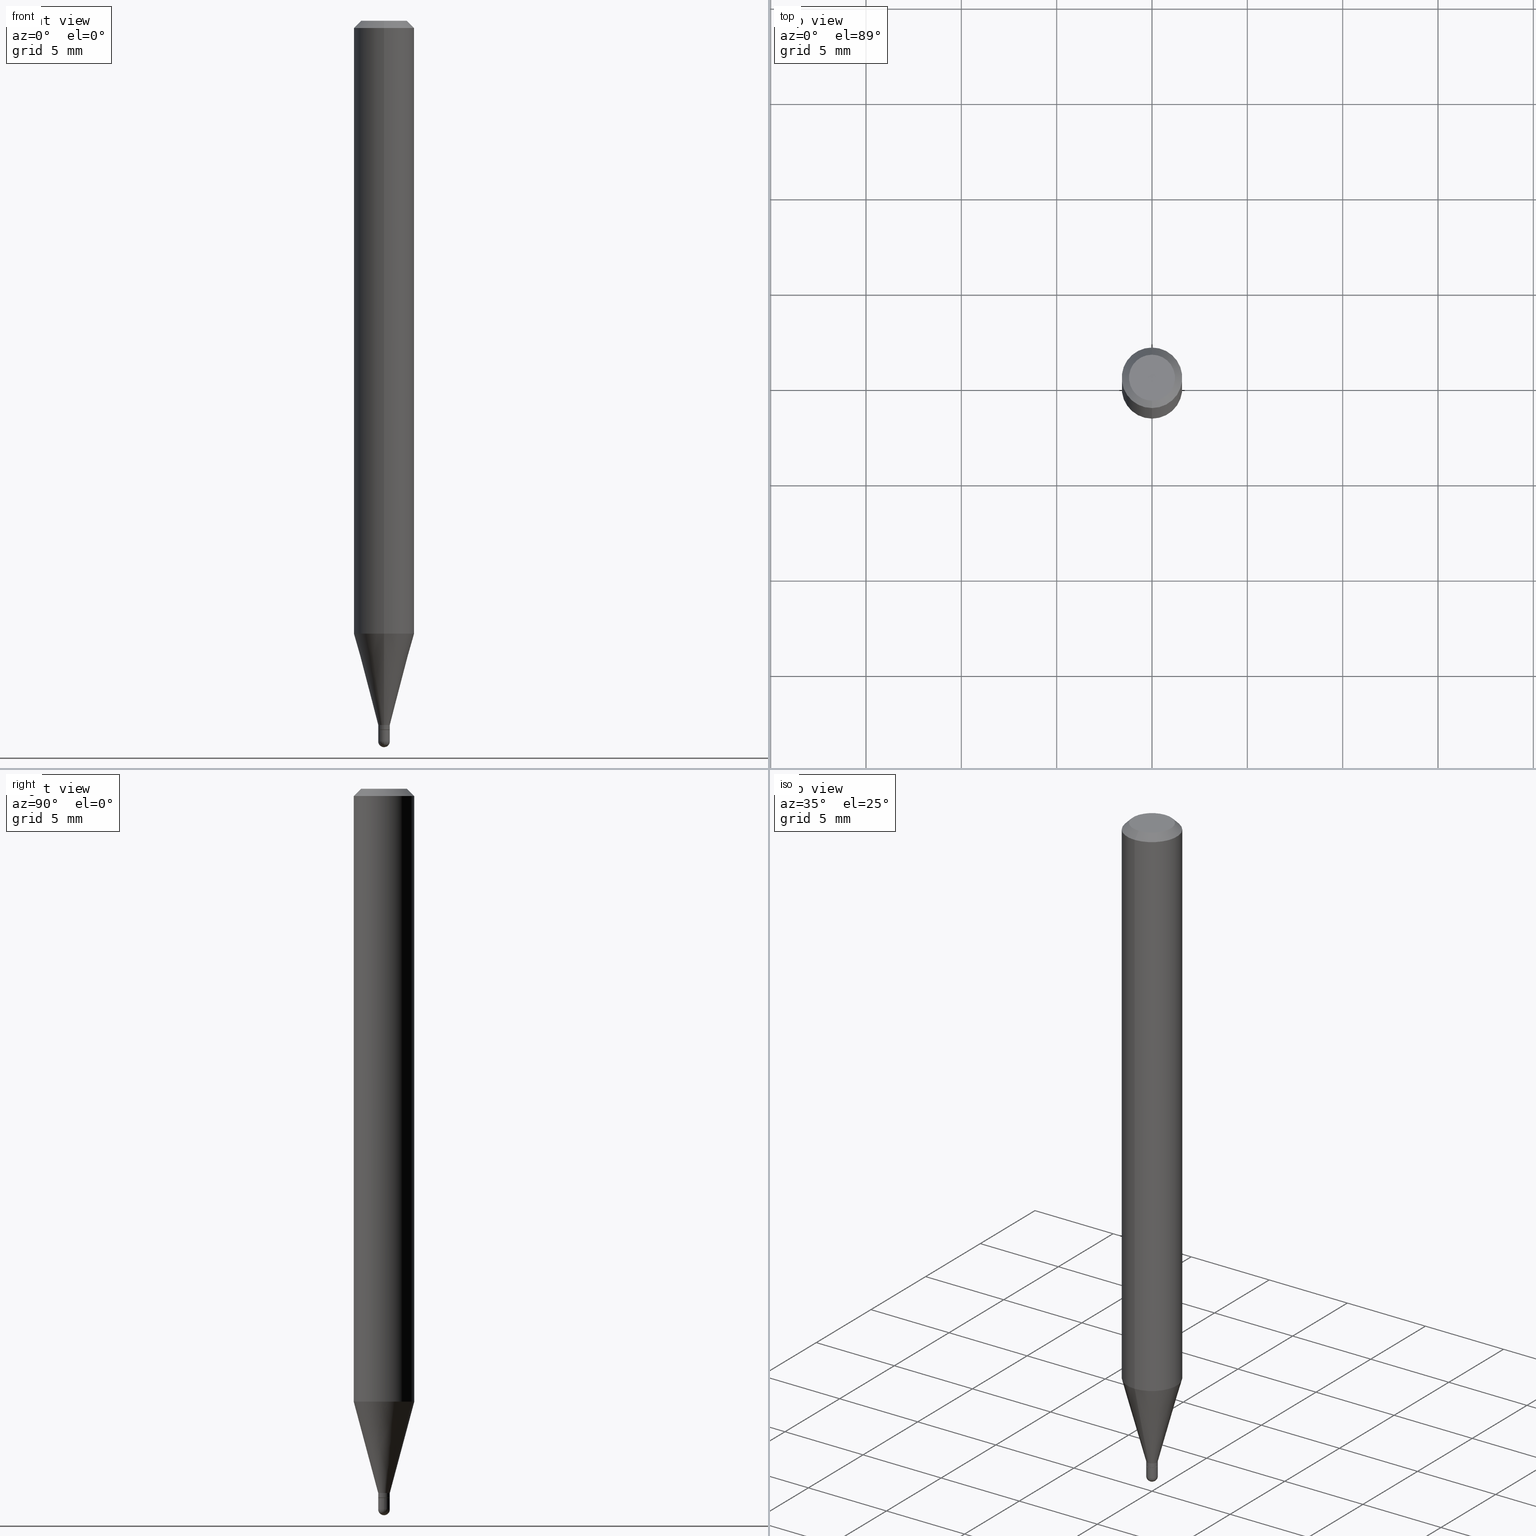
[diagram: canonical four-view strip — front | top / right | iso, engineering-drawing reading convention]
A machine part, canonical four-view strip (front | top / right | iso — engineering-drawing reading convention). The complete STEP part file that produces these views, byte-faithful:
ISO-10303-21;
HEADER;
FILE_DESCRIPTION (( 'STEP AP203' ),
    '1' );
FILE_NAME ('00759.STEP',
    '2024-03-07T18:13:53',
    ( '' ),
    ( '' ),
    'SwSTEP 2.0',
    'SolidWorks 2023',
    '' );
FILE_SCHEMA (( 'CONFIG_CONTROL_DESIGN' ));
ENDSEC;

DATA;
#1 = DIRECTION ( 'NONE',  ( -6.982962677686265922E-15, -1.000000000000000000, 3.491494319443495188E-15 ) ) ;
#2 = EDGE_CURVE ( 'NONE', #6, #416, #243, .T. ) ;
#3 =( LENGTH_UNIT ( ) NAMED_UNIT ( * ) SI_UNIT ( $, .METRE. ) );
#4 = DIRECTION ( 'NONE',  ( -1.000000000000000000, 6.982962677686265922E-15, -4.876176775795935793E-29 ) ) ;
#5 = DIRECTION ( 'NONE',  ( -2.445459741880358586E-29, 3.491494319443495582E-15, 1.000000000000000000 ) ) ;
#6 = VERTEX_POINT ( 'NONE', #434 ) ;
#7 = AXIS2_PLACEMENT_3D ( 'NONE', #348, #468, #471 ) ;
#8 = DIRECTION ( 'NONE',  ( -6.982962677686265922E-15, -1.000000000000000000, 3.491494319443495582E-15 ) ) ;
#9 = COORDINATED_UNIVERSAL_TIME_OFFSET ( 5, 0, .BEHIND. ) ;
#10 = EDGE_CURVE ( 'NONE', #340, #172, #161, .T. ) ;
#11 = SHAPE_DEFINITION_REPRESENTATION ( #228, #477 ) ;
#12 = CC_DESIGN_PERSON_AND_ORGANIZATION_ASSIGNMENT ( #400, #252, ( #386 ) ) ;
#13 = LINE ( 'NONE', #56, #472 ) ;
#14 = DATE_AND_TIME ( #201, #265 ) ;
#15 = CARTESIAN_POINT ( 'NONE',  ( 0.01200000000000000025, -5.195324232198600513E-15, -1.463999999999999968 ) ) ;
#16 = VECTOR ( 'NONE', #287, 39.37007874015748143 ) ;
#17 = CC_DESIGN_APPROVAL ( #199, ( #386 ) ) ;
#18 = DATE_TIME_ROLE ( 'creation_date' ) ;
#19 = EDGE_LOOP ( 'NONE', ( #275, #500 ) ) ;
#20 = ADVANCED_FACE ( 'NONE', ( #135 ), #383, .T. ) ;
#21 = ORIENTED_EDGE ( 'NONE', *, *, #37, .F. ) ;
#22 = CARTESIAN_POINT ( 'NONE',  ( 0.000000000000000000, 0.000000000000000000, 0.000000000000000000 ) ) ;
#23 = EDGE_LOOP ( 'NONE', ( #436, #306, #250, #125 ) ) ;
#24 = DIRECTION ( 'NONE',  ( -2.445468806185136597E-29, 3.491481338843145583E-15, 1.000000000000000000 ) ) ;
#25 = FACE_OUTER_BOUND ( 'NONE', #380, .T. ) ;
#26 = CARTESIAN_POINT ( 'NONE',  ( -8.379555213219913775E-17, -0.01200000000000507432, -1.463500000000000023 ) ) ;
#27 = CIRCLE ( 'NONE', #334, 0.04749999999999999362 ) ;
#28 = VERTEX_POINT ( 'NONE', #46 ) ;
#29 = VECTOR ( 'NONE', #270, 39.37007874015748143 ) ;
#30 = EDGE_CURVE ( 'NONE', #416, #63, #320, .T. ) ;
#31 = DIRECTION ( 'NONE',  ( -6.982962677686265922E-15, -1.000000000000000000, 0.000000000000000000 ) ) ;
#32 = UNCERTAINTY_MEASURE_WITH_UNIT (LENGTH_MEASURE( 1.000000000000000082E-05 ), #346, 'distance_accuracy_value', 'NONE');
#33 = ORIENTED_EDGE ( 'NONE', *, *, #235, .T. ) ;
#34 = PERSON ( 'UNSPECIFIED', 'UNSPECIFIED', 'UNSPECIFIED', ('UNSPECIFIED'), ('UNSPECIFIED'), ('UNSPECIFIED') ) ;
#35 = AXIS2_PLACEMENT_3D ( 'NONE', #276, #482, #232 ) ;
#36 = AXIS2_PLACEMENT_3D ( 'NONE', #133, #93, #280 ) ;
#37 = EDGE_CURVE ( 'NONE', #6, #317, #131, .T. ) ;
#38 = ORIENTED_EDGE ( 'NONE', *, *, #2, .F. ) ;
#39 = VERTEX_POINT ( 'NONE', #399 ) ;
#40 = AXIS2_PLACEMENT_3D ( 'NONE', #267, #465, #126 ) ;
#41 = DIRECTION ( 'NONE',  ( 6.982962677686265922E-15, 1.000000000000000000, -3.491494319443495582E-15 ) ) ;
#42 = CARTESIAN_POINT ( 'NONE',  ( -0.01200000000000000025, -5.068161327841269963E-15, -1.463999999999999968 ) ) ;
#43 = DIRECTION ( 'NONE',  ( -6.982962677686266711E-15, -1.000000000000000000, 0.000000000000000000 ) ) ;
#44 = ORIENTED_EDGE ( 'NONE', *, *, #162, .F. ) ;
#45 = CARTESIAN_POINT ( 'NONE',  ( 0.000000000000000000, 0.000000000000000000, 0.000000000000000000 ) ) ;
#46 = CARTESIAN_POINT ( 'NONE',  ( 3.840629472727447874E-16, 0.04749999999999999362, -1.747056831868805136E-16 ) ) ;
#47 = DIRECTION ( 'NONE',  ( 1.000000000000000000, -6.982962677686250144E-15, 0.000000000000000000 ) ) ;
#48 = PLANE ( 'NONE',  #314 ) ;
#49 = PERSON_AND_ORGANIZATION_ROLE ( 'design_supplier' ) ;
#50 = VECTOR ( 'NONE', #91, 39.37007874015748143 ) ;
#51 = AXIS2_PLACEMENT_3D ( 'NONE', #114, #218, #372 ) ;
#52 = CC_DESIGN_APPROVAL ( #389, ( #325 ) ) ;
#53 = CARTESIAN_POINT ( 'NONE',  ( 0.000000000000000000, 0.000000000000000000, 0.000000000000000000 ) ) ;
#54 = DIRECTION ( 'NONE',  ( 1.839019923739599921E-15, 0.2588190451025249028, 0.9659258262890670910 ) ) ;
#55 = ORIENTED_EDGE ( 'NONE', *, *, #205, .F. ) ;
#56 = CARTESIAN_POINT ( 'NONE',  ( -4.364351673553916201E-16, -0.06250000000000000000, 2.182183949652184739E-16 ) ) ;
#57 = PERSON_AND_ORGANIZATION ( #34, #308 ) ;
#58 = ORIENTED_EDGE ( 'NONE', *, *, #205, .T. ) ;
#59 = CARTESIAN_POINT ( 'NONE',  ( 0.01200000000000000198, -5.237222008264718177E-15, -1.487999999999999989 ) ) ;
#60 = FACE_OUTER_BOUND ( 'NONE', #415, .T. ) ;
#61 = CARTESIAN_POINT ( 'NONE',  ( -4.364351673553606573E-16, -0.06250000000000442701, -1.265531434217771922 ) ) ;
#62 = CIRCLE ( 'NONE', #458, 0.01199999999999992219 ) ;
#63 = VERTEX_POINT ( 'NONE', #26 ) ;
#64 = APPROVAL_DATE_TIME ( #490, #164 ) ;
#65 = CARTESIAN_POINT ( 'NONE',  ( 3.637831384056468447E-29, -5.196793808357578073E-15, -1.487999999999999989 ) ) ;
#66 = PRODUCT_DEFINITION ( 'UNKNOWN', '', #386, #418 ) ;
#67 = CARTESIAN_POINT ( 'NONE',  ( 3.578930332241904630E-29, -5.109801936505556785E-15, -1.463500000000000023 ) ) ;
#68 = ORIENTED_EDGE ( 'NONE', *, *, #37, .T. ) ;
#69 = ADVANCED_FACE ( 'NONE', ( #60 ), #330, .F. ) ;
#70 = DIRECTION ( 'NONE',  ( 1.000000000000000000, -6.982962677686265922E-15, 4.883557194083112340E-29 ) ) ;
#71 = VECTOR ( 'NONE', #342, 39.37007874015748143 ) ;
#72 = LOCAL_TIME ( 13, 13, 53.00000000000000000, #144 ) ;
#73 = DIRECTION ( 'NONE',  ( -1.000000000000000000, 6.982962677686265922E-15, -4.883557194083112901E-29 ) ) ;
#74 = ORIENTED_EDGE ( 'NONE', *, *, #183, .F. ) ;
#75 = MANIFOLD_SOLID_BREP ( 'Body-Move/Copy2[1]', #494 ) ;
#76 = ORIENTED_EDGE ( 'NONE', *, *, #235, .F. ) ;
#77 = CARTESIAN_POINT ( 'NONE',  ( 3.580166332255040005E-29, -5.111528680066365187E-15, -1.463999999999999968 ) ) ;
#78 = CIRCLE ( 'NONE', #118, 0.06250000000000000000 ) ;
#79 = LOCAL_TIME ( 13, 13, 53.00000000000000000, #92 ) ;
#80 = DIRECTION ( 'NONE',  ( -2.445459741880358586E-29, 3.491494319443495582E-15, 1.000000000000000000 ) ) ;
#81 = ORIENTED_EDGE ( 'NONE', *, *, #507, .T. ) ;
#82 = CYLINDRICAL_SURFACE ( 'NONE', #350, 0.01200000000000000198 ) ;
#83 = CARTESIAN_POINT ( 'NONE',  ( 3.638857583603483825E-29, -5.195324232198600513E-15, -1.487999999999999989 ) ) ;
#84 = VECTOR ( 'NONE', #352, 39.37007874015748143 ) ;
#85 = VECTOR ( 'NONE', #378, 39.37007874015748143 ) ;
#86 = FACE_OUTER_BOUND ( 'NONE', #379, .T. ) ;
#87 = ORIENTED_EDGE ( 'NONE', *, *, #318, .F. ) ;
#88 = CYLINDRICAL_SURFACE ( 'NONE', #215, 0.06250000000000000000 ) ;
#89 = DIRECTION ( 'NONE',  ( -2.445459741880358586E-29, 3.491494319443495582E-15, 1.000000000000000000 ) ) ;
#90 = ORIENTED_EDGE ( 'NONE', *, *, #277, .T. ) ;
#91 = DIRECTION ( 'NONE',  ( 5.024295867788190974E-15, 0.7071067811865681119, 0.7071067811865270336 ) ) ;
#92 = COORDINATED_UNIVERSAL_TIME_OFFSET ( 5, 0, .BEHIND. ) ;
#93 = DIRECTION ( 'NONE',  ( -2.445459741880358586E-29, 3.491494319443495582E-15, 1.000000000000000000 ) ) ;
#94 = ORIENTED_EDGE ( 'NONE', *, *, #318, .T. ) ;
#95 = FACE_OUTER_BOUND ( 'NONE', #151, .T. ) ;
#96 = ADVANCED_FACE ( 'NONE', ( #157 ), #341, .T. ) ;
#97 = DATE_AND_TIME ( #486, #79 ) ;
#98 = AXIS2_PLACEMENT_3D ( 'NONE', #402, #5, #237 ) ;
#99 = ORIENTED_EDGE ( 'NONE', *, *, #311, .T. ) ;
#100 = FACE_OUTER_BOUND ( 'NONE', #120, .T. ) ;
#101 = DIRECTION ( 'NONE',  ( -2.445459741880358586E-29, 3.491494319443495582E-15, 1.000000000000000000 ) ) ;
#102 = ADVANCED_FACE ( 'NONE', ( #95 ), #440, .T. ) ;
#103 = APPROVAL_STATUS ( 'not_yet_approved' ) ;
#104 = DIRECTION ( 'NONE',  ( -2.445468806185136597E-29, 3.491481338843145583E-15, 1.000000000000000000 ) ) ;
#105 = DATE_TIME_ROLE ( 'classification_date' ) ;
#106 = EDGE_CURVE ( 'NONE', #338, #298, #13, .T. ) ;
#107 = ORIENTED_EDGE ( 'NONE', *, *, #227, .T. ) ;
#108 = LINE ( 'NONE', #414, #123 ) ;
#109 = ORIENTED_EDGE ( 'NONE', *, *, #134, .T. ) ;
#110 = COORDINATED_UNIVERSAL_TIME_OFFSET ( 5, 0, .BEHIND. ) ;
#111 = DIRECTION ( 'NONE',  ( -4.851104656540964275E-15, -0.7071067811865500152, -0.7071067811865450192 ) ) ;
#112 = AXIS2_PLACEMENT_3D ( 'NONE', #83, #427, #266 ) ;
#113 = EDGE_LOOP ( 'NONE', ( #127, #33, #369, #442 ) ) ;
#114 = CARTESIAN_POINT ( 'NONE',  ( 3.637831384056468447E-29, -5.196793808357578073E-15, -1.487999999999999989 ) ) ;
#115 = ADVANCED_FACE ( 'NONE', ( #163 ), #258, .T. ) ;
#116 = VERTEX_POINT ( 'NONE', #437 ) ;
#117 = CIRCLE ( 'NONE', #428, 0.01200000000000000198 ) ;
#118 = AXIS2_PLACEMENT_3D ( 'NONE', #295, #485, #217 ) ;
#119 =( GEOMETRIC_REPRESENTATION_CONTEXT ( 3 ) GLOBAL_UNCERTAINTY_ASSIGNED_CONTEXT ( ( #32 ) ) GLOBAL_UNIT_ASSIGNED_CONTEXT ( ( #346, #424, #168 ) ) REPRESENTATION_CONTEXT ( 'NONE', 'WORKASPACE' ) );
#120 = EDGE_LOOP ( 'NONE', ( #21, #150, #247, #479 ) ) ;
#121 = ORIENTED_EDGE ( 'NONE', *, *, #406, .T. ) ;
#122 = ORIENTED_EDGE ( 'NONE', *, *, #303, .T. ) ;
#123 = VECTOR ( 'NONE', #111, 39.37007874015748143 ) ;
#124 = DIRECTION ( 'NONE',  ( -6.982962677686265133E-15, -1.000000000000000000, 0.000000000000000000 ) ) ;
#125 = ORIENTED_EDGE ( 'NONE', *, *, #498, .F. ) ;
#126 = DIRECTION ( 'NONE',  ( 6.982962677686265922E-15, 1.000000000000000000, -3.483106191921935554E-15 ) ) ;
#127 = ORIENTED_EDGE ( 'NONE', *, *, #406, .F. ) ;
#128 = FACE_OUTER_BOUND ( 'NONE', #113, .T. ) ;
#129 = AXIS2_PLACEMENT_3D ( 'NONE', #67, #493, #171 ) ;
#130 = EDGE_LOOP ( 'NONE', ( #462, #68, #286, #373 ) ) ;
#131 = LINE ( 'NONE', #273, #50 ) ;
#132 = LINE ( 'NONE', #158, #511 ) ;
#133 = CARTESIAN_POINT ( 'NONE',  ( 3.094806174463673262E-29, -4.418595813648531797E-15, -1.265531434217772144 ) ) ;
#134 = EDGE_CURVE ( 'NONE', #219, #39, #117, .T. ) ;
#135 = FACE_OUTER_BOUND ( 'NONE', #368, .T. ) ;
#136 = ADVANCED_FACE ( 'NONE', ( #433 ), #480, .T. ) ;
#137 = SECURITY_CLASSIFICATION_LEVEL ( 'unclassified' ) ;
#138 = AXIS2_PLACEMENT_3D ( 'NONE', #140, #104, #248 ) ;
#139 = AXIS2_PLACEMENT_3D ( 'NONE', #351, #238, #512 ) ;
#140 = CARTESIAN_POINT ( 'NONE',  ( 3.638857583603483825E-29, -5.195324232198600513E-15, -1.487999999999999989 ) ) ;
#141 = PERSON_AND_ORGANIZATION ( #34, #308 ) ;
#142 = CARTESIAN_POINT ( 'NONE',  ( 3.637831384056468447E-29, -5.196793808357578073E-15, -1.487999999999999989 ) ) ;
#143 = CALENDAR_DATE ( 2024, 7, 3 ) ;
#144 = COORDINATED_UNIVERSAL_TIME_OFFSET ( 5, 0, .BEHIND. ) ;
#145 = EDGE_LOOP ( 'NONE', ( #409, #122, #450, #87 ) ) ;
#146 = DIRECTION ( 'NONE',  ( -2.445459741880358586E-29, 3.491494319443495582E-15, 1.000000000000000000 ) ) ;
#147 = AXIS2_PLACEMENT_3D ( 'NONE', #508, #226, #194 ) ;
#148 = DIRECTION ( 'NONE',  ( -6.982962677686265133E-15, -1.000000000000000000, 0.000000000000000000 ) ) ;
#149 = ADVANCED_FACE ( 'NONE', ( #397 ), #48, .F. ) ;
#150 = ORIENTED_EDGE ( 'NONE', *, *, #2, .T. ) ;
#151 = EDGE_LOOP ( 'NONE', ( #487, #261, #289, #76 ) ) ;
#152 = CARTESIAN_POINT ( 'NONE',  ( -8.379555213219910077E-17, -0.01200000000000499972, -1.454000000000000181 ) ) ;
#153 = AXIS2_PLACEMENT_3D ( 'NONE', #364, #489, #448 ) ;
#154 = VECTOR ( 'NONE', #390, 39.37007874015748143 ) ;
#155 = PLANE ( 'NONE',  #463 ) ;
#156 = FACE_OUTER_BOUND ( 'NONE', #497, .T. ) ;
#157 = FACE_OUTER_BOUND ( 'NONE', #187, .T. ) ;
#158 = CARTESIAN_POINT ( 'NONE',  ( -8.379555213223467347E-17, -0.01199999999999992566, 4.189793183332168341E-17 ) ) ;
#159 = CARTESIAN_POINT ( 'NONE',  ( 4.440892098500932831E-16, 0.06249999999999555911, -1.265531434217772366 ) ) ;
#160 = EDGE_LOOP ( 'NONE', ( #182, #99, #502, #206 ) ) ;
#161 = LINE ( 'NONE', #208, #374 ) ;
#162 = EDGE_CURVE ( 'NONE', #332, #337, #245, .T. ) ;
#163 = FACE_OUTER_BOUND ( 'NONE', #23, .T. ) ;
#164 = APPROVAL ( #103, 'UNSPECIFIED' ) ;
#165 = DATE_AND_TIME ( #143, #431 ) ;
#166 = DIRECTION ( 'NONE',  ( -6.982962677686265922E-15, -1.000000000000000000, 3.491494319443495188E-15 ) ) ;
#167 = DIRECTION ( 'NONE',  ( -2.445459741880358586E-29, 3.491494319443495582E-15, 1.000000000000000000 ) ) ;
#168 =( NAMED_UNIT ( * ) SI_UNIT ( $, .STERADIAN. ) SOLID_ANGLE_UNIT ( ) );
#169 = CIRCLE ( 'NONE', #253, 0.01200000000000000025 ) ;
#170 = SPHERICAL_SURFACE ( 'NONE', #178, 0.01200000000000001933 ) ;
#171 = DIRECTION ( 'NONE',  ( -6.982962677686265922E-15, -1.000000000000000000, 0.000000000000000000 ) ) ;
#172 = VERTEX_POINT ( 'NONE', #159 ) ;
#173 = APPROVAL_STATUS ( 'not_yet_approved' ) ;
#174 = VERTEX_POINT ( 'NONE', #354 ) ;
#175 = CARTESIAN_POINT ( 'NONE',  ( 2.166604704407663648E-46, -3.093360274294388668E-32, -8.859703013314469095E-18 ) ) ;
#176 = ADVANCED_FACE ( 'NONE', ( #128 ), #88, .T. ) ;
#177 = DIRECTION ( 'NONE',  ( 1.000000000000000000, -6.982962677686266711E-15, 4.876176775795935232E-29 ) ) ;
#178 = AXIS2_PLACEMENT_3D ( 'NONE', #142, #290, #410 ) ;
#179 = DIRECTION ( 'NONE',  ( -6.982962677686266711E-15, -1.000000000000000000, 3.491494319443496371E-15 ) ) ;
#180 = DIMENSIONAL_EXPONENTS ( 1.000000000000000000, 0.000000000000000000, 0.000000000000000000, 0.000000000000000000, 0.000000000000000000, 0.000000000000000000, 0.000000000000000000 ) ;
#181 = ORIENTED_EDGE ( 'NONE', *, *, #507, .F. ) ;
#182 = ORIENTED_EDGE ( 'NONE', *, *, #269, .F. ) ;
#183 = EDGE_CURVE ( 'NONE', #467, #337, #260, .T. ) ;
#184 = AXIS2_PLACEMENT_3D ( 'NONE', #53, #393, #1 ) ;
#185 = CC_DESIGN_SECURITY_CLASSIFICATION ( #325, ( #386 ) ) ;
#186 = EDGE_CURVE ( 'NONE', #63, #317, #376, .T. ) ;
#187 = EDGE_LOOP ( 'NONE', ( #299, #509, #478, #473 ) ) ;
#188 = CC_DESIGN_PERSON_AND_ORGANIZATION_ASSIGNMENT ( #213, #328, ( #66 ) ) ;
#189 = PRODUCT ( '00759', '00759', '', ( #357 ) ) ;
#190 = CONICAL_SURFACE ( 'NONE', #324, 0.01149999999999999981, 0.7853981633974739252 ) ;
#191 = APPROVAL_PERSON_ORGANIZATION ( #141, #199, #435 ) ;
#192 = LINE ( 'NONE', #272, #154 ) ;
#193 = DIRECTION ( 'NONE',  ( 1.000000000000000000, -6.982962677686250144E-15, 0.000000000000000000 ) ) ;
#194 = DIRECTION ( 'NONE',  ( -6.982962677686266711E-15, -1.000000000000000000, 3.491494319443496371E-15 ) ) ;
#195 = DIRECTION ( 'NONE',  ( -2.445459741880358586E-29, 3.491494319443495582E-15, 1.000000000000000000 ) ) ;
#196 = EDGE_CURVE ( 'NONE', #469, #39, #355, .T. ) ;
#197 = CARTESIAN_POINT ( 'NONE',  ( -8.030407079335625387E-17, -0.01150000000000511204, -1.463999999999999968 ) ) ;
#198 = CARTESIAN_POINT ( 'NONE',  ( 0.000000000000000000, 0.000000000000000000, 0.000000000000000000 ) ) ;
#199 = APPROVAL ( #173, 'UNSPECIFIED' ) ;
#200 = CIRCLE ( 'NONE', #293, 0.06250000000000000000 ) ;
#201 = CALENDAR_DATE ( 2024, 7, 3 ) ;
#202 = APPROVAL_PERSON_ORGANIZATION ( #331, #164, #360 ) ;
#203 = DIRECTION ( 'NONE',  ( 2.438088387897960049E-29, -3.491481338843145188E-15, -1.000000000000000000 ) ) ;
#204 = DIRECTION ( 'NONE',  ( 6.982962677686265922E-15, 1.000000000000000000, -3.483106191921935554E-15 ) ) ;
#205 = EDGE_CURVE ( 'NONE', #454, #298, #108, .T. ) ;
#206 = ORIENTED_EDGE ( 'NONE', *, *, #423, .F. ) ;
#207 = DIRECTION ( 'NONE',  ( -2.445459741880358586E-29, 3.491494319443495582E-15, 1.000000000000000000 ) ) ;
#208 = CARTESIAN_POINT ( 'NONE',  ( 8.526512829124701746E-17, 0.01199999999999484465, -1.454000000000000181 ) ) ;
#209 = PERSON_AND_ORGANIZATION ( #34, #308 ) ;
#210 = PRODUCT_RELATED_PRODUCT_CATEGORY ( 'detail', '', ( #189 ) ) ;
#211 = ORIENTED_EDGE ( 'NONE', *, *, #277, .F. ) ;
#212 = FACE_OUTER_BOUND ( 'NONE', #145, .T. ) ;
#213 = PERSON_AND_ORGANIZATION ( #34, #308 ) ;
#214 = AXIS2_PLACEMENT_3D ( 'NONE', #278, #438, #204 ) ;
#215 = AXIS2_PLACEMENT_3D ( 'NONE', #45, #195, #8 ) ;
#216 = LINE ( 'NONE', #488, #85 ) ;
#217 = DIRECTION ( 'NONE',  ( -6.982962677686265922E-15, -1.000000000000000000, 3.483106191921935554E-15 ) ) ;
#218 = DIRECTION ( 'NONE',  ( -1.000000000000000000, 7.105427357601001070E-15, -4.926315508542082329E-29 ) ) ;
#219 = VERTEX_POINT ( 'NONE', #251 ) ;
#220 = ORIENTED_EDGE ( 'NONE', *, *, #162, .T. ) ;
#221 = CIRCLE ( 'NONE', #139, 0.01149999999999999981 ) ;
#222 = APPLICATION_CONTEXT ( 'configuration controlled 3d designs of mechanical parts and assemblies' ) ;
#223 = ORIENTED_EDGE ( 'NONE', *, *, #470, .F. ) ;
#224 = DIRECTION ( 'NONE',  ( 6.982962677686265922E-15, 1.000000000000000000, 0.000000000000000000 ) ) ;
#225 = CIRCLE ( 'NONE', #7, 0.01199999999999992219 ) ;
#226 = DIRECTION ( 'NONE',  ( -2.445459741880358586E-29, 3.491494319443495582E-15, 1.000000000000000000 ) ) ;
#227 = EDGE_CURVE ( 'NONE', #454, #28, #27, .T. ) ;
#228 = PRODUCT_DEFINITION_SHAPE ( 'NONE', 'NONE',  #66 ) ;
#229 = DIRECTION ( 'NONE',  ( -2.445459741880358586E-29, 3.491494319443495582E-15, 1.000000000000000000 ) ) ;
#230 = CARTESIAN_POINT ( 'NONE',  ( 2.646771690706703907E-16, 0.01199999999999484465, -1.454000000000000181 ) ) ;
#231 = CARTESIAN_POINT ( 'NONE',  ( -8.030407079335625387E-17, -0.01150000000000511204, -1.463999999999999968 ) ) ;
#232 = DIRECTION ( 'NONE',  ( -6.982962677686266711E-15, -1.000000000000000000, 0.000000000000000000 ) ) ;
#233 = AXIS2_PLACEMENT_3D ( 'NONE', #22, #484, #370 ) ;
#234 = DIRECTION ( 'NONE',  ( -2.445468806185136597E-29, 3.491481338843145583E-15, 1.000000000000000000 ) ) ;
#235 = EDGE_CURVE ( 'NONE', #172, #338, #200, .T. ) ;
#236 = MANIFOLD_SOLID_BREP ( 'Body-Move/Copy2[2]', #263 ) ;
#237 = DIRECTION ( 'NONE',  ( -6.982962677686265133E-15, -1.000000000000000000, 0.000000000000000000 ) ) ;
#238 = DIRECTION ( 'NONE',  ( -2.445459741880358586E-29, 3.491494319443495582E-15, 1.000000000000000000 ) ) ;
#239 = DIRECTION ( 'NONE',  ( -6.982962677686266711E-15, -1.000000000000000000, 0.000000000000000000 ) ) ;
#240 = APPROVAL_DATE_TIME ( #97, #199 ) ;
#241 = CYLINDRICAL_SURFACE ( 'NONE', #307, 0.06250000000000000000 ) ;
#242 = CARTESIAN_POINT ( 'NONE',  ( 8.379555213227099805E-17, 0.01199999999999488802, -1.463999999999999968 ) ) ;
#243 = CIRCLE ( 'NONE', #98, 0.01149999999999999981 ) ;
#244 = CONICAL_SURFACE ( 'NONE', #449, 0.01149999999999999981, 0.7853981633974739252 ) ;
#245 = LINE ( 'NONE', #281, #421 ) ;
#246 = CALENDAR_DATE ( 2024, 7, 3 ) ;
#247 = ORIENTED_EDGE ( 'NONE', *, *, #30, .T. ) ;
#248 = DIRECTION ( 'NONE',  ( 1.000000000000000000, -6.982962677686250144E-15, 0.000000000000000000 ) ) ;
#249 = COORDINATED_UNIVERSAL_TIME_OFFSET ( 5, 0, .BEHIND. ) ;
#250 = ORIENTED_EDGE ( 'NONE', *, *, #375, .F. ) ;
#251 = CARTESIAN_POINT ( 'NONE',  ( -0.01200000000000000198, -5.068161327841269963E-15, -1.487999999999999989 ) ) ;
#252 = PERSON_AND_ORGANIZATION_ROLE ( 'creator' ) ;
#253 = AXIS2_PLACEMENT_3D ( 'NONE', #77, #384, #506 ) ;
#254 = CARTESIAN_POINT ( 'NONE',  ( 3.094806174463673262E-29, -4.418595813648531797E-15, -1.265531434217772144 ) ) ;
#255 = ADVANCED_FACE ( 'NONE', ( #25 ), #327, .T. ) ;
#256 = CARTESIAN_POINT ( 'NONE',  ( 0.000000000000000000, 0.000000000000000000, 0.000000000000000000 ) ) ;
#257 = CARTESIAN_POINT ( 'NONE',  ( 3.578930332241904630E-29, -5.109801936505556785E-15, -1.463500000000000023 ) ) ;
#258 = CONICAL_SURFACE ( 'NONE', #323, 0.01199999999999992219, 0.2617993877991502405 ) ;
#259 = FACE_OUTER_BOUND ( 'NONE', #304, .T. ) ;
#260 = CIRCLE ( 'NONE', #392, 0.01200000000000000025 ) ;
#261 = ORIENTED_EDGE ( 'NONE', *, *, #423, .T. ) ;
#262 = ORIENTED_EDGE ( 'NONE', *, *, #344, .T. ) ;
#263 = CLOSED_SHELL ( 'NONE', ( #96, #297, #20, #382, #115, #102, #176, #432, #464, #69, #387, #136 ) ) ;
#264 = EDGE_CURVE ( 'NONE', #298, #116, #474, .T. ) ;
#265 = LOCAL_TIME ( 13, 13, 53.00000000000000000, #9 ) ;
#266 = DIRECTION ( 'NONE',  ( 1.000000000000000000, -6.982962677686250144E-15, 0.000000000000000000 ) ) ;
#267 = CARTESIAN_POINT ( 'NONE',  ( 3.668189612820540681E-31, -5.237241479165246480E-17, -0.01500000000000000812 ) ) ;
#268 = CARTESIAN_POINT ( 'NONE',  ( 3.555698464694041863E-29, -5.076632740470843581E-15, -1.454000000000000181 ) ) ;
#269 = EDGE_CURVE ( 'NONE', #317, #340, #216, .T. ) ;
#270 = DIRECTION ( 'NONE',  ( -1.807323732225329745E-15, -0.2588190451025181305, 0.9659258262890689783 ) ) ;
#271 = AXIS2_PLACEMENT_3D ( 'NONE', #257, #417, #31 ) ;
#272 = CARTESIAN_POINT ( 'NONE',  ( 4.440892098500625669E-16, 0.06250000000000000000, -2.182183949652184739E-16 ) ) ;
#273 = CARTESIAN_POINT ( 'NONE',  ( 8.171241461244731456E-17, 0.01149999999999488931, -1.463999999999999968 ) ) ;
#274 = DIRECTION ( 'NONE',  ( 1.000000000000000000, -6.982962677686266711E-15, 4.876176775795935232E-29 ) ) ;
#275 = ORIENTED_EDGE ( 'NONE', *, *, #356, .T. ) ;
#276 = CARTESIAN_POINT ( 'NONE',  ( 3.555698464694041863E-29, -5.076632740470843581E-15, -1.454000000000000181 ) ) ;
#277 = EDGE_CURVE ( 'NONE', #28, #116, #296, .T. ) ;
#278 = CARTESIAN_POINT ( 'NONE',  ( 3.668189612820540681E-31, -5.237241479165246480E-17, -0.01500000000000000812 ) ) ;
#279 = PERSON_AND_ORGANIZATION_ROLE ( 'design_owner' ) ;
#280 = DIRECTION ( 'NONE',  ( -6.982962677686265922E-15, -1.000000000000000000, 4.370956789862821150E-15 ) ) ;
#281 = CARTESIAN_POINT ( 'NONE',  ( 0.01200000000000000198, -8.379555213223521581E-17, 5.851412130955123337E-31 ) ) ;
#282 = CC_DESIGN_DATE_AND_TIME_ASSIGNMENT ( #14, #105, ( #325 ) ) ;
#283 = CIRCLE ( 'NONE', #138, 0.01200000000000000198 ) ;
#284 = LOCAL_TIME ( 13, 13, 53.00000000000000000, #249 ) ;
#285 = APPLICATION_PROTOCOL_DEFINITION ( 'international standard', 'config_control_design', 1994, #222 ) ;
#286 = ORIENTED_EDGE ( 'NONE', *, *, #186, .F. ) ;
#287 = DIRECTION ( 'NONE',  ( 4.937700262164548042E-15, 0.7071067811865451302, -0.7071067811865499042 ) ) ;
#288 = APPROVAL_STATUS ( 'not_yet_approved' ) ;
#289 = ORIENTED_EDGE ( 'NONE', *, *, #498, .T. ) ;
#290 = DIRECTION ( 'NONE',  ( -1.000000000000000000, 6.982962677686265922E-15, -4.883557194083112901E-29 ) ) ;
#291 = EDGE_CURVE ( 'NONE', #116, #298, #78, .T. ) ;
#292 = DIRECTION ( 'NONE',  ( -6.982962677686265922E-15, -1.000000000000000000, 3.483106191921935554E-15 ) ) ;
#293 = AXIS2_PLACEMENT_3D ( 'NONE', #254, #443, #408 ) ;
#294 = APPROVAL_PERSON_ORGANIZATION ( #326, #389, #321 ) ;
#295 = CARTESIAN_POINT ( 'NONE',  ( 3.668189612820540681E-31, -5.237241479165246480E-17, -0.01500000000000000812 ) ) ;
#296 = LINE ( 'NONE', #447, #16 ) ;
#297 = ADVANCED_FACE ( 'NONE', ( #336 ), #244, .T. ) ;
#298 = VERTEX_POINT ( 'NONE', #412 ) ;
#299 = ORIENTED_EDGE ( 'NONE', *, *, #186, .T. ) ;
#300 = CC_DESIGN_PERSON_AND_ORGANIZATION_ASSIGNMENT ( #209, #316, ( #325 ) ) ;
#301 = ORIENTED_EDGE ( 'NONE', *, *, #398, .F. ) ;
#302 = AXIS2_PLACEMENT_3D ( 'NONE', #388, #510, #47 ) ;
#303 = EDGE_CURVE ( 'NONE', #469, #174, #495, .T. ) ;
#304 = EDGE_LOOP ( 'NONE', ( #407, #377, #362, #301 ) ) ;
#305 = FACE_OUTER_BOUND ( 'NONE', #420, .T. ) ;
#306 = ORIENTED_EDGE ( 'NONE', *, *, #10, .T. ) ;
#307 = AXIS2_PLACEMENT_3D ( 'NONE', #391, #310, #313 ) ;
#308 = ORGANIZATION ( 'UNSPECIFIED', 'UNSPECIFIED', '' ) ;
#309 = CARTESIAN_POINT ( 'NONE',  ( 3.667690109504198047E-29, -5.237956796344207351E-15, -1.500000000000000222 ) ) ;
#310 = DIRECTION ( 'NONE',  ( -2.445459741880358586E-29, 3.491494319443495582E-15, 1.000000000000000000 ) ) ;
#311 = EDGE_CURVE ( 'NONE', #317, #63, #441, .T. ) ;
#312 = CARTESIAN_POINT ( 'NONE',  ( -8.379555213219910077E-17, -0.01200000000000499972, -1.454000000000000181 ) ) ;
#313 = DIRECTION ( 'NONE',  ( -6.982962677686265922E-15, -1.000000000000000000, 3.491494319443495582E-15 ) ) ;
#314 = AXIS2_PLACEMENT_3D ( 'NONE', #242, #203, #4 ) ;
#315 = CARTESIAN_POINT ( 'NONE',  ( 3.580166332255040005E-29, -5.111528680066365187E-15, -1.463999999999999968 ) ) ;
#316 = PERSON_AND_ORGANIZATION_ROLE ( 'classification_officer' ) ;
#317 = VERTEX_POINT ( 'NONE', #339 ) ;
#318 = EDGE_CURVE ( 'NONE', #39, #332, #283, .T. ) ;
#319 = CARTESIAN_POINT ( 'NONE',  ( 3.638857583603483825E-29, -5.195324232198600513E-15, -1.487999999999999989 ) ) ;
#320 = LINE ( 'NONE', #197, #84 ) ;
#321 = APPROVAL_ROLE ( '' ) ;
#322 = CARTESIAN_POINT ( 'NONE',  ( 0.000000000000000000, 0.000000000000000000, 0.000000000000000000 ) ) ;
#323 = AXIS2_PLACEMENT_3D ( 'NONE', #268, #101, #239 ) ;
#324 = AXIS2_PLACEMENT_3D ( 'NONE', #466, #229, #124 ) ;
#325 = SECURITY_CLASSIFICATION ( '', '', #137 ) ;
#326 = PERSON_AND_ORGANIZATION ( #34, #308 ) ;
#327 = CYLINDRICAL_SURFACE ( 'NONE', #385, 0.01200000000000000198 ) ;
#328 = PERSON_AND_ORGANIZATION_ROLE ( 'creator' ) ;
#329 = CARTESIAN_POINT ( 'NONE',  ( 3.668189612820540681E-31, -5.237241479165246480E-17, -0.01500000000000000812 ) ) ;
#330 = PLANE ( 'NONE',  #153 ) ;
#331 = PERSON_AND_ORGANIZATION ( #34, #308 ) ;
#332 = VERTEX_POINT ( 'NONE', #59 ) ;
#333 = DIRECTION ( 'NONE',  ( -2.445468806185136597E-29, 3.491481338843145583E-15, 1.000000000000000000 ) ) ;
#334 = AXIS2_PLACEMENT_3D ( 'NONE', #175, #146, #179 ) ;
#335 = ADVANCED_FACE ( 'NONE', ( #212 ), #170, .T. ) ;
#336 = FACE_OUTER_BOUND ( 'NONE', #130, .T. ) ;
#337 = VERTEX_POINT ( 'NONE', #15 ) ;
#338 = VERTEX_POINT ( 'NONE', #61 ) ;
#339 = CARTESIAN_POINT ( 'NONE',  ( 8.526512829124698048E-17, 0.01199999999999477526, -1.463500000000000023 ) ) ;
#340 = VERTEX_POINT ( 'NONE', #230 ) ;
#341 = CYLINDRICAL_SURFACE ( 'NONE', #365, 0.01199999999999992566 ) ;
#342 = DIRECTION ( 'NONE',  ( -2.445468806185136877E-29, 3.491481338843145188E-15, 1.000000000000000000 ) ) ;
#343 = CIRCLE ( 'NONE', #36, 0.06250000000000000000 ) ;
#344 = EDGE_CURVE ( 'NONE', #219, #467, #345, .T. ) ;
#345 = LINE ( 'NONE', #455, #71 ) ;
#346 =( CONVERSION_BASED_UNIT ( 'INCH', #353 ) LENGTH_UNIT ( ) NAMED_UNIT ( #180 ) );
#347 = ORIENTED_EDGE ( 'NONE', *, *, #375, .T. ) ;
#348 = CARTESIAN_POINT ( 'NONE',  ( 3.555698464694041863E-29, -5.076632740470843581E-15, -1.454000000000000181 ) ) ;
#349 = ADVANCED_FACE ( 'NONE', ( #259 ), #501, .T. ) ;
#350 = AXIS2_PLACEMENT_3D ( 'NONE', #198, #234, #274 ) ;
#351 = CARTESIAN_POINT ( 'NONE',  ( 3.580153062112845070E-29, -5.111547683665277744E-15, -1.463999999999999968 ) ) ;
#352 = DIRECTION ( 'NONE',  ( -4.937700262164674260E-15, -0.7071067811865632269, 0.7071067811865319186 ) ) ;
#353 = LENGTH_MEASURE_WITH_UNIT ( LENGTH_MEASURE( 0.02539999999999999897 ), #3 );
#354 = CARTESIAN_POINT ( 'NONE',  ( 8.379555213227166365E-17, 0.01199999999999481516, -1.487999999999999989 ) ) ;
#355 = CIRCLE ( 'NONE', #51, 0.01200000000000001933 ) ;
#356 = EDGE_CURVE ( 'NONE', #337, #467, #169, .T. ) ;
#357 = MECHANICAL_CONTEXT ( 'NONE', #456, 'mechanical' ) ;
#358 = ORIENTED_EDGE ( 'NONE', *, *, #344, .F. ) ;
#359 = DIRECTION ( 'NONE',  ( -2.445468806185136597E-29, 3.491481338843145583E-15, 1.000000000000000000 ) ) ;
#360 = APPROVAL_ROLE ( '' ) ;
#361 = VERTEX_POINT ( 'NONE', #152 ) ;
#362 = ORIENTED_EDGE ( 'NONE', *, *, #134, .F. ) ;
#363 = EDGE_CURVE ( 'NONE', #361, #340, #62, .T. ) ;
#364 = CARTESIAN_POINT ( 'NONE',  ( 3.580153062112845070E-29, -5.111547683665277744E-15, -1.463999999999999968 ) ) ;
#365 = AXIS2_PLACEMENT_3D ( 'NONE', #322, #167, #166 ) ;
#366 = CIRCLE ( 'NONE', #302, 0.01200000000000000198 ) ;
#367 = CC_DESIGN_APPROVAL ( #164, ( #66 ) ) ;
#368 = EDGE_LOOP ( 'NONE', ( #395, #58, #381, #211 ) ) ;
#369 = ORIENTED_EDGE ( 'NONE', *, *, #106, .T. ) ;
#370 = DIRECTION ( 'NONE',  ( 1.000000000000000000, 0.000000000000000000, 0.000000000000000000 ) ) ;
#371 = DIRECTION ( 'NONE',  ( -2.445459741880358586E-29, 3.491494319443495582E-15, 1.000000000000000000 ) ) ;
#372 = DIRECTION ( 'NONE',  ( -7.105427357600999492E-15, -1.000000000000000000, 0.000000000000000000 ) ) ;
#373 = ORIENTED_EDGE ( 'NONE', *, *, #30, .F. ) ;
#374 = VECTOR ( 'NONE', #54, 39.37007874015748143 ) ;
#375 = EDGE_CURVE ( 'NONE', #338, #172, #343, .T. ) ;
#376 = CIRCLE ( 'NONE', #129, 0.01199999999999992566 ) ;
#377 = ORIENTED_EDGE ( 'NONE', *, *, #196, .T. ) ;
#378 = DIRECTION ( 'NONE',  ( -2.445459741880358586E-29, 3.491494319443495582E-15, 1.000000000000000000 ) ) ;
#379 = EDGE_LOOP ( 'NONE', ( #358, #109, #94, #220, #74 ) ) ;
#380 = EDGE_LOOP ( 'NONE', ( #413, #262, #499, #44, #459 ) ) ;
#381 = ORIENTED_EDGE ( 'NONE', *, *, #264, .T. ) ;
#382 = ADVANCED_FACE ( 'NONE', ( #156 ), #241, .T. ) ;
#383 = CONICAL_SURFACE ( 'NONE', #214, 0.06250000000000000000, 0.7853981633974483900 ) ;
#384 = DIRECTION ( 'NONE',  ( -2.445468806185136597E-29, 3.491481338843145583E-15, 1.000000000000000000 ) ) ;
#385 = AXIS2_PLACEMENT_3D ( 'NONE', #256, #333, #177 ) ;
#386 = PRODUCT_DEFINITION_FORMATION_WITH_SPECIFIED_SOURCE ( 'ANY', '', #189, .NOT_KNOWN. ) ;
#387 = ADVANCED_FACE ( 'NONE', ( #100 ), #190, .T. ) ;
#388 = CARTESIAN_POINT ( 'NONE',  ( 3.638857583603483825E-29, -5.195324232198600513E-15, -1.487999999999999989 ) ) ;
#389 = APPROVAL ( #288, 'UNSPECIFIED' ) ;
#390 = DIRECTION ( 'NONE',  ( -2.445459741880358586E-29, 3.491494319443495582E-15, 1.000000000000000000 ) ) ;
#391 = CARTESIAN_POINT ( 'NONE',  ( 0.000000000000000000, 0.000000000000000000, 0.000000000000000000 ) ) ;
#392 = AXIS2_PLACEMENT_3D ( 'NONE', #315, #24, #446 ) ;
#393 = DIRECTION ( 'NONE',  ( -2.445459741880358586E-29, 3.491494319443495582E-15, 1.000000000000000000 ) ) ;
#394 = FACE_OUTER_BOUND ( 'NONE', #411, .T. ) ;
#395 = ORIENTED_EDGE ( 'NONE', *, *, #227, .F. ) ;
#396 = DIRECTION ( 'NONE',  ( 2.445459741880358586E-29, -3.491494319443495582E-15, -1.000000000000000000 ) ) ;
#397 = FACE_OUTER_BOUND ( 'NONE', #19, .T. ) ;
#398 = EDGE_CURVE ( 'NONE', #174, #219, #419, .T. ) ;
#399 = CARTESIAN_POINT ( 'NONE',  ( -8.526512829117569950E-17, -0.01200000000000520442, -1.487999999999999989 ) ) ;
#400 = PERSON_AND_ORGANIZATION ( #34, #308 ) ;
#401 = AXIS2_PLACEMENT_3D ( 'NONE', #329, #371, #292 ) ;
#402 = CARTESIAN_POINT ( 'NONE',  ( 3.580153062112845070E-29, -5.111547683665277744E-15, -1.463999999999999968 ) ) ;
#403 = CC_DESIGN_PERSON_AND_ORGANIZATION_ASSIGNMENT ( #481, #279, ( #189 ) ) ;
#404 = APPLICATION_PROTOCOL_DEFINITION ( 'international standard', 'config_control_design', 1994, #456 ) ;
#405 = DATE_AND_TIME ( #445, #284 ) ;
#406 = EDGE_CURVE ( 'NONE', #172, #116, #192, .T. ) ;
#407 = ORIENTED_EDGE ( 'NONE', *, *, #303, .F. ) ;
#408 = DIRECTION ( 'NONE',  ( -6.982962677686265922E-15, -1.000000000000000000, 4.370956789862821150E-15 ) ) ;
#409 = ORIENTED_EDGE ( 'NONE', *, *, #196, .F. ) ;
#410 = DIRECTION ( 'NONE',  ( 6.982962677686265922E-15, 1.000000000000000000, 0.000000000000000000 ) ) ;
#411 = EDGE_LOOP ( 'NONE', ( #81, #107 ) ) ;
#412 = CARTESIAN_POINT ( 'NONE',  ( -4.364351673553912750E-16, -0.06250000000000005551, -0.01499999999999979128 ) ) ;
#413 = ORIENTED_EDGE ( 'NONE', *, *, #398, .T. ) ;
#414 = CARTESIAN_POINT ( 'NONE',  ( -4.287811248607203282E-16, -0.06250000000000005551, -0.01499999999999979128 ) ) ;
#415 = EDGE_LOOP ( 'NONE', ( #223, #38 ) ) ;
#416 = VERTEX_POINT ( 'NONE', #231 ) ;
#417 = DIRECTION ( 'NONE',  ( -2.445459741880358586E-29, 3.491494319443495582E-15, 1.000000000000000000 ) ) ;
#418 = DESIGN_CONTEXT ( 'detailed design', #222, 'design' ) ;
#419 = CIRCLE ( 'NONE', #112, 0.01200000000000000198 ) ;
#420 = EDGE_LOOP ( 'NONE', ( #55, #181, #90, #429 ) ) ;
#421 = VECTOR ( 'NONE', #430, 39.37007874015748143 ) ;
#422 = CIRCLE ( 'NONE', #147, 0.04749999999999999362 ) ;
#423 = EDGE_CURVE ( 'NONE', #340, #361, #225, .T. ) ;
#424 =( NAMED_UNIT ( * ) PLANE_ANGLE_UNIT ( ) SI_UNIT ( $, .RADIAN. ) );
#425 = CC_DESIGN_DATE_AND_TIME_ASSIGNMENT ( #405, #18, ( #66 ) ) ;
#426 = CARTESIAN_POINT ( 'NONE',  ( -3.773273898774340269E-16, -0.04749999999999999362, 1.569862771602515785E-16 ) ) ;
#427 = DIRECTION ( 'NONE',  ( -2.445468806185136597E-29, 3.491481338843145583E-15, 1.000000000000000000 ) ) ;
#428 = AXIS2_PLACEMENT_3D ( 'NONE', #319, #359, #193 ) ;
#429 = ORIENTED_EDGE ( 'NONE', *, *, #291, .T. ) ;
#430 = DIRECTION ( 'NONE',  ( -2.445468806185136877E-29, 3.491481338843145188E-15, 1.000000000000000000 ) ) ;
#431 = LOCAL_TIME ( 13, 13, 53.00000000000000000, #110 ) ;
#432 = ADVANCED_FACE ( 'NONE', ( #305 ), #483, .T. ) ;
#433 = FACE_OUTER_BOUND ( 'NONE', #160, .T. ) ;
#434 = CARTESIAN_POINT ( 'NONE',  ( 8.348877145184729543E-17, 0.01149999999999488931, -1.463999999999999968 ) ) ;
#435 = APPROVAL_ROLE ( '' ) ;
#436 = ORIENTED_EDGE ( 'NONE', *, *, #363, .T. ) ;
#437 = CARTESIAN_POINT ( 'NONE',  ( 4.440892098500936776E-16, 0.06249999999999993755, -0.01500000000000022669 ) ) ;
#438 = DIRECTION ( 'NONE',  ( 2.445459741880358586E-29, -3.491494319443495582E-15, -1.000000000000000000 ) ) ;
#439 = APPROVAL_DATE_TIME ( #165, #389 ) ;
#440 = CONICAL_SURFACE ( 'NONE', #35, 0.01199999999999992219, 0.2617993877991502405 ) ;
#441 = CIRCLE ( 'NONE', #271, 0.01199999999999992566 ) ;
#442 = ORIENTED_EDGE ( 'NONE', *, *, #291, .F. ) ;
#443 = DIRECTION ( 'NONE',  ( -2.445459741880358586E-29, 3.491494319443495582E-15, 1.000000000000000000 ) ) ;
#444 = CC_DESIGN_PERSON_AND_ORGANIZATION_ASSIGNMENT ( #57, #49, ( #386 ) ) ;
#445 = CALENDAR_DATE ( 2024, 7, 3 ) ;
#446 = DIRECTION ( 'NONE',  ( 1.000000000000000000, -6.982962677686251722E-15, 0.000000000000000000 ) ) ;
#447 = CARTESIAN_POINT ( 'NONE',  ( 4.364351673553919652E-16, 0.06249999999999995143, -0.01500000000000022669 ) ) ;
#448 = DIRECTION ( 'NONE',  ( -6.982962677686265922E-15, -1.000000000000000000, 3.491494319443495582E-15 ) ) ;
#449 = AXIS2_PLACEMENT_3D ( 'NONE', #496, #451, #148 ) ;
#450 = ORIENTED_EDGE ( 'NONE', *, *, #457, .F. ) ;
#451 = DIRECTION ( 'NONE',  ( -2.445459741880358586E-29, 3.491494319443495582E-15, 1.000000000000000000 ) ) ;
#452 = ADVANCED_FACE ( 'NONE', ( #86 ), #82, .T. ) ;
#453 = DIRECTION ( 'NONE',  ( 6.982962677686265922E-15, 1.000000000000000000, 0.000000000000000000 ) ) ;
#454 = VERTEX_POINT ( 'NONE', #426 ) ;
#455 = CARTESIAN_POINT ( 'NONE',  ( -0.01200000000000000198, 8.526512829121203641E-17, -5.902722108305888753E-31 ) ) ;
#456 = APPLICATION_CONTEXT ( 'configuration controlled 3d designs of mechanical parts and assemblies' ) ;
#457 = EDGE_CURVE ( 'NONE', #332, #174, #366, .T. ) ;
#458 = AXIS2_PLACEMENT_3D ( 'NONE', #476, #89, #43 ) ;
#459 = ORIENTED_EDGE ( 'NONE', *, *, #457, .T. ) ;
#460 = AXIS2_PLACEMENT_3D ( 'NONE', #505, #73, #224 ) ;
#461 = LINE ( 'NONE', #312, #29 ) ;
#462 = ORIENTED_EDGE ( 'NONE', *, *, #470, .T. ) ;
#463 = AXIS2_PLACEMENT_3D ( 'NONE', #475, #396, #41 ) ;
#464 = ADVANCED_FACE ( 'NONE', ( #394 ), #155, .F. ) ;
#465 = DIRECTION ( 'NONE',  ( 2.445459741880358586E-29, -3.491494319443495582E-15, -1.000000000000000000 ) ) ;
#466 = CARTESIAN_POINT ( 'NONE',  ( 3.580153062112845070E-29, -5.111547683665277744E-15, -1.463999999999999968 ) ) ;
#467 = VERTEX_POINT ( 'NONE', #42 ) ;
#468 = DIRECTION ( 'NONE',  ( -2.445459741880358586E-29, 3.491494319443495582E-15, 1.000000000000000000 ) ) ;
#469 = VERTEX_POINT ( 'NONE', #309 ) ;
#470 = EDGE_CURVE ( 'NONE', #416, #6, #221, .T. ) ;
#471 = DIRECTION ( 'NONE',  ( -6.982962677686266711E-15, -1.000000000000000000, 0.000000000000000000 ) ) ;
#472 = VECTOR ( 'NONE', #207, 39.37007874015748143 ) ;
#473 = ORIENTED_EDGE ( 'NONE', *, *, #491, .F. ) ;
#474 = CIRCLE ( 'NONE', #401, 0.06250000000000000000 ) ;
#475 = CARTESIAN_POINT ( 'NONE',  ( 3.316907271900976096E-16, 0.04749999999999999362, -1.702758316802232799E-16 ) ) ;
#476 = CARTESIAN_POINT ( 'NONE',  ( 3.555698464694041863E-29, -5.076632740470843581E-15, -1.454000000000000181 ) ) ;
#477 = ADVANCED_BREP_SHAPE_REPRESENTATION ( '00759', ( #75, #236, #233 ), #119 ) ;
#478 = ORIENTED_EDGE ( 'NONE', *, *, #363, .F. ) ;
#479 = ORIENTED_EDGE ( 'NONE', *, *, #311, .F. ) ;
#480 = CYLINDRICAL_SURFACE ( 'NONE', #184, 0.01199999999999992566 ) ;
#481 = PERSON_AND_ORGANIZATION ( #34, #308 ) ;
#482 = DIRECTION ( 'NONE',  ( -2.445459741880358586E-29, 3.491494319443495582E-15, 1.000000000000000000 ) ) ;
#483 = CONICAL_SURFACE ( 'NONE', #40, 0.06250000000000000000, 0.7853981633974483900 ) ;
#484 = DIRECTION ( 'NONE',  ( 0.000000000000000000, 0.000000000000000000, 1.000000000000000000 ) ) ;
#485 = DIRECTION ( 'NONE',  ( -2.445459741880358586E-29, 3.491494319443495582E-15, 1.000000000000000000 ) ) ;
#486 = CALENDAR_DATE ( 2024, 7, 3 ) ;
#487 = ORIENTED_EDGE ( 'NONE', *, *, #10, .F. ) ;
#488 = CARTESIAN_POINT ( 'NONE',  ( 8.526512829121146941E-17, 0.01199999999999992566, -4.189793183332168341E-17 ) ) ;
#489 = DIRECTION ( 'NONE',  ( -2.445459741880358586E-29, 3.491494319443495582E-15, 1.000000000000000000 ) ) ;
#490 = DATE_AND_TIME ( #246, #72 ) ;
#491 = EDGE_CURVE ( 'NONE', #63, #361, #132, .T. ) ;
#492 = ORIENTED_EDGE ( 'NONE', *, *, #106, .F. ) ;
#493 = DIRECTION ( 'NONE',  ( -2.445459741880358586E-29, 3.491494319443495582E-15, 1.000000000000000000 ) ) ;
#494 = CLOSED_SHELL ( 'NONE', ( #255, #349, #149, #335, #452 ) ) ;
#495 = CIRCLE ( 'NONE', #503, 0.01200000000000001933 ) ;
#496 = CARTESIAN_POINT ( 'NONE',  ( 3.580153062112845070E-29, -5.111547683665277744E-15, -1.463999999999999968 ) ) ;
#497 = EDGE_LOOP ( 'NONE', ( #347, #121, #504, #492 ) ) ;
#498 = EDGE_CURVE ( 'NONE', #361, #338, #461, .T. ) ;
#499 = ORIENTED_EDGE ( 'NONE', *, *, #356, .F. ) ;
#500 = ORIENTED_EDGE ( 'NONE', *, *, #183, .T. ) ;
#501 = SPHERICAL_SURFACE ( 'NONE', #460, 0.01200000000000001933 ) ;
#502 = ORIENTED_EDGE ( 'NONE', *, *, #491, .T. ) ;
#503 = AXIS2_PLACEMENT_3D ( 'NONE', #65, #70, #453 ) ;
#504 = ORIENTED_EDGE ( 'NONE', *, *, #264, .F. ) ;
#505 = CARTESIAN_POINT ( 'NONE',  ( 3.637831384056468447E-29, -5.196793808357578073E-15, -1.487999999999999989 ) ) ;
#506 = DIRECTION ( 'NONE',  ( 1.000000000000000000, -6.982962677686251722E-15, 0.000000000000000000 ) ) ;
#507 = EDGE_CURVE ( 'NONE', #28, #454, #422, .T. ) ;
#508 = CARTESIAN_POINT ( 'NONE',  ( 2.166604704407663648E-46, -3.093360274294388668E-32, -8.859703013314469095E-18 ) ) ;
#509 = ORIENTED_EDGE ( 'NONE', *, *, #269, .T. ) ;
#510 = DIRECTION ( 'NONE',  ( -2.445468806185136597E-29, 3.491481338843145583E-15, 1.000000000000000000 ) ) ;
#511 = VECTOR ( 'NONE', #80, 39.37007874015748143 ) ;
#512 = DIRECTION ( 'NONE',  ( -6.982962677686265133E-15, -1.000000000000000000, 0.000000000000000000 ) ) ;
ENDSEC;
END-ISO-10303-21;
